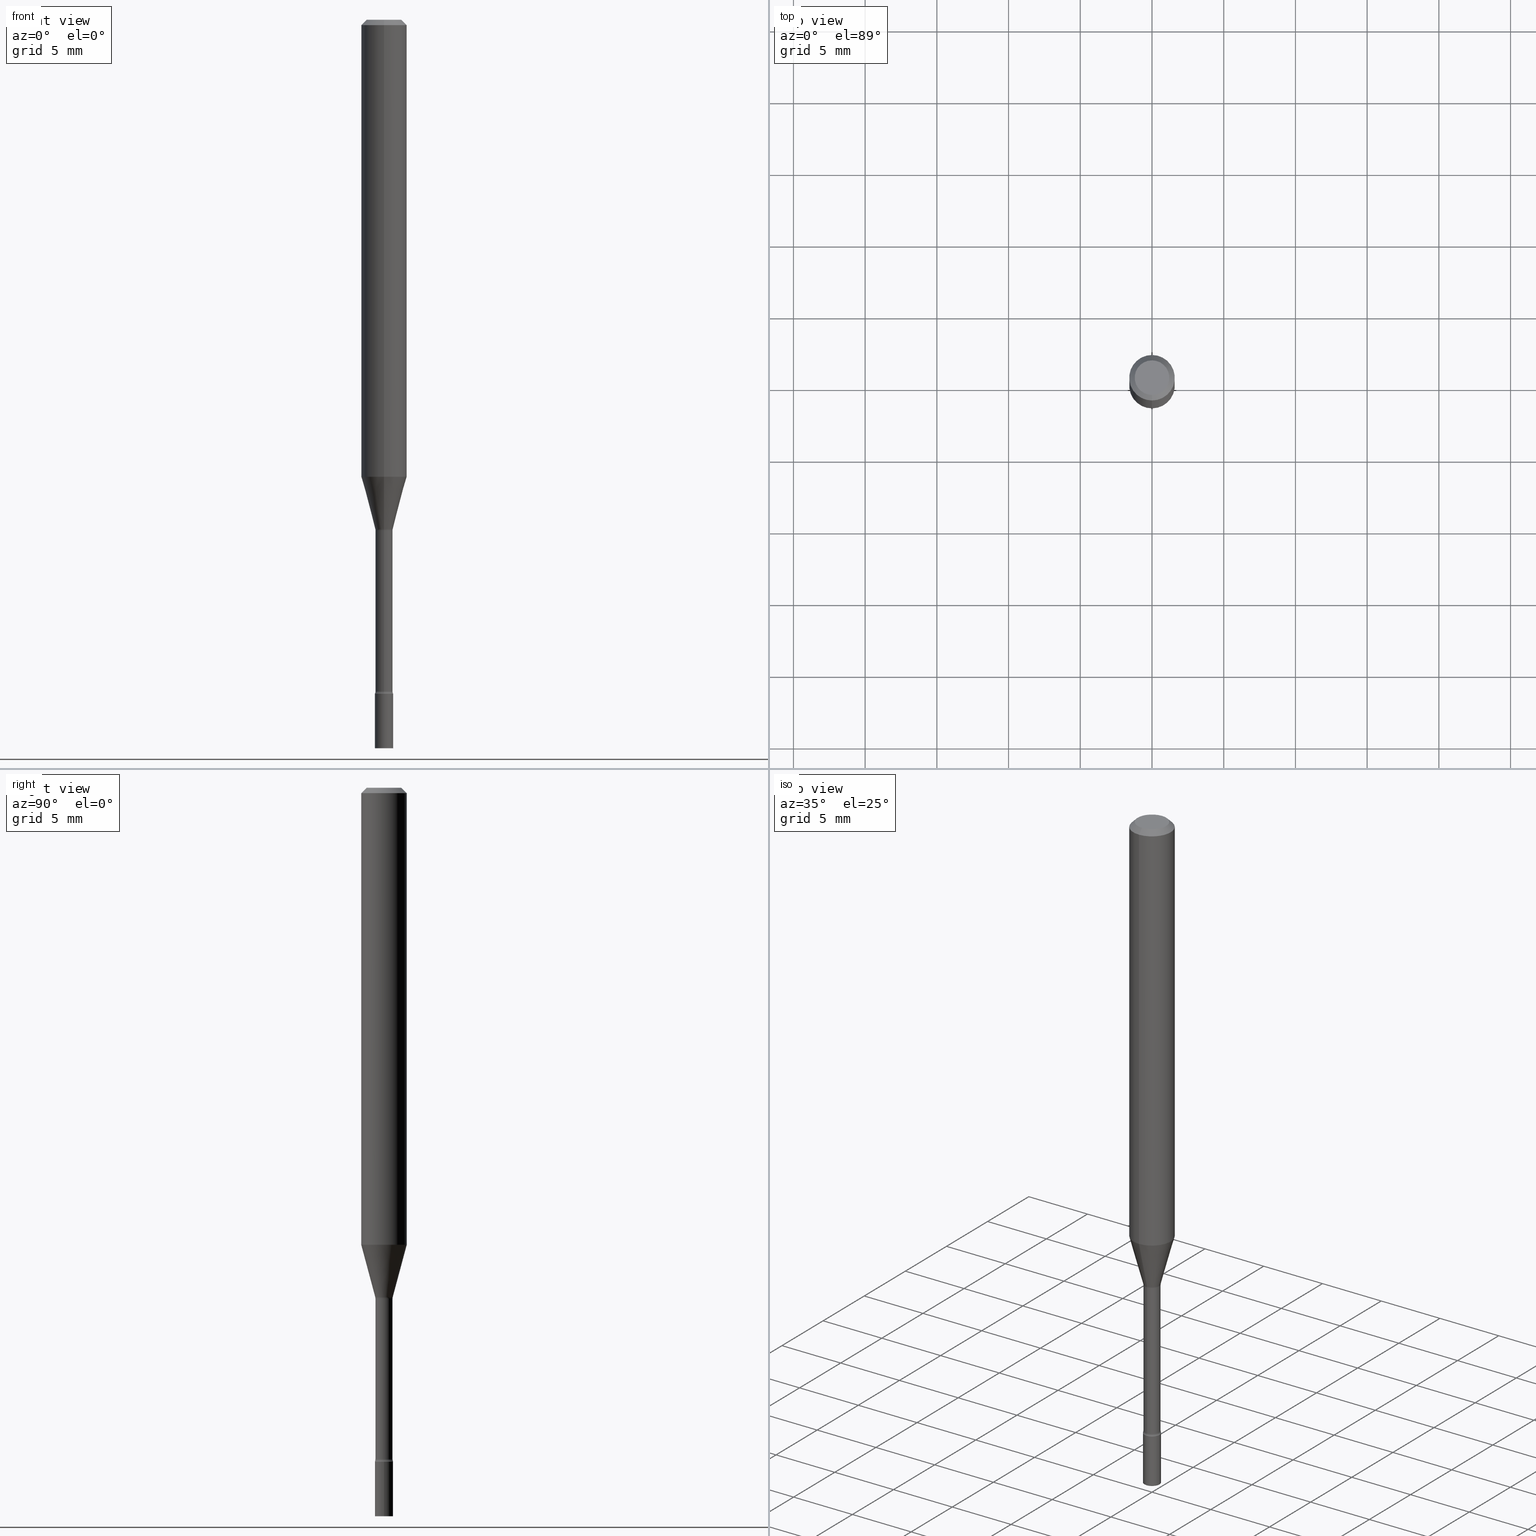
[diagram: canonical four-view strip — front | top / right | iso, engineering-drawing reading convention]
A machine part, canonical four-view strip (front | top / right | iso — engineering-drawing reading convention). The complete STEP part file that produces these views, byte-faithful:
ISO-10303-21;
HEADER;
FILE_DESCRIPTION (( 'STEP AP203' ),
    '1' );
FILE_NAME ('03437.STEP',
    '2024-03-08T21:22:01',
    ( '' ),
    ( '' ),
    'SwSTEP 2.0',
    'SolidWorks 2023',
    '' );
FILE_SCHEMA (( 'CONFIG_CONTROL_DESIGN' ));
ENDSEC;

DATA;
#1 = CARTESIAN_POINT ( 'NONE',  ( -4.364351673553912750E-16, -0.06250000000000005551, -0.01499999999999981209 ) ) ;
#2 = ORIENTED_EDGE ( 'NONE', *, *, #178, .T. ) ;
#3 = AXIS2_PLACEMENT_3D ( 'NONE', #188, #15, #303 ) ;
#4 = EDGE_LOOP ( 'NONE', ( #366, #451, #513, #84 ) ) ;
#5 = AXIS2_PLACEMENT_3D ( 'NONE', #498, #247, #462 ) ;
#6 = CONICAL_SURFACE ( 'NONE', #469, 0.06250000000000000000, 0.7853981633974483900 ) ;
#7 = FACE_OUTER_BOUND ( 'NONE', #139, .T. ) ;
#8 = ORIENTED_EDGE ( 'NONE', *, *, #16, .F. ) ;
#9 = DIRECTION ( 'NONE',  ( -2.445468806185136597E-29, 3.491481338843145583E-15, 1.000000000000000000 ) ) ;
#10 = DIRECTION ( 'NONE',  ( -2.445460790589413397E-29, 3.491492817632440030E-15, 1.000000000000000000 ) ) ;
#11 = DIRECTION ( 'NONE',  ( -2.445460790589413958E-29, 3.491492817632439636E-15, 1.000000000000000000 ) ) ;
#12 = EDGE_LOOP ( 'NONE', ( #341, #320, #77, #475 ) ) ;
#13 = EDGE_CURVE ( 'NONE', #439, #364, #354, .T. ) ;
#14 = DIRECTION ( 'NONE',  ( 1.000000000000000000, -6.982962677686254878E-15, 0.000000000000000000 ) ) ;
#15 = DIRECTION ( 'NONE',  ( -2.445460790589413958E-29, 3.491492817632439636E-15, 1.000000000000000000 ) ) ;
#16 = EDGE_CURVE ( 'NONE', #211, #364, #414, .T. ) ;
#17 = DIRECTION ( 'NONE',  ( -2.445460790589413958E-29, 3.491492817632439636E-15, 1.000000000000000000 ) ) ;
#18 = DATE_AND_TIME ( #355, #42 ) ;
#19 = CARTESIAN_POINT ( 'NONE',  ( 2.735589532676839768E-16, 0.03849999999999361572, -1.843461651584689109 ) ) ;
#20 = VECTOR ( 'NONE', #201, 39.37007874015748143 ) ;
#21 = CC_DESIGN_PERSON_AND_ORGANIZATION_ASSIGNMENT ( #236, #385, ( #156 ) ) ;
#22 = DATE_AND_TIME ( #311, #214 ) ;
#23 = CARTESIAN_POINT ( 'NONE',  ( 1.706092163947572763E-16, 0.02401111260565909691, -1.398092501787273179 ) ) ;
#24 = PRODUCT_DEFINITION_FORMATION_WITH_SPECIFIED_SOURCE ( 'ANY', '', #172, .NOT_KNOWN. ) ;
#25 = APPROVAL_ROLE ( '' ) ;
#26 = DIRECTION ( 'NONE',  ( 2.438088387897960049E-29, -3.491481338843145188E-15, -1.000000000000000000 ) ) ;
#27 = APPLICATION_PROTOCOL_DEFINITION ( 'international standard', 'config_control_design', 1994, #461 ) ;
#28 = DIRECTION ( 'NONE',  ( -2.445460790589413958E-29, 3.491492817632439636E-15, 1.000000000000000000 ) ) ;
#29 = TOROIDAL_SURFACE ( 'NONE', #503, 0.03850000000000005501, 0.01499999999999998036 ) ;
#30 = CARTESIAN_POINT ( 'NONE',  ( 3.428485609800787057E-29, -4.894968807958481776E-15, -1.401974787463811101 ) ) ;
#31 = AXIS2_PLACEMENT_3D ( 'NONE', #491, #55, #406 ) ;
#32 = EDGE_CURVE ( 'NONE', #122, #233, #482, .T. ) ;
#33 = ORIENTED_EDGE ( 'NONE', *, *, #118, .F. ) ;
#34 = CARTESIAN_POINT ( 'NONE',  ( -3.773273898774340269E-16, -0.04749999999999999362, 1.369325431521633397E-16 ) ) ;
#35 = ORIENTED_EDGE ( 'NONE', *, *, #467, .T. ) ;
#36 = ADVANCED_FACE ( 'NONE', ( #53 ), #362, .T. ) ;
#37 = DIRECTION ( 'NONE',  ( -6.982962677686266711E-15, -1.000000000000000000, 0.000000000000000000 ) ) ;
#38 = ORIENTED_EDGE ( 'NONE', *, *, #135, .F. ) ;
#39 = CC_DESIGN_PERSON_AND_ORGANIZATION_ASSIGNMENT ( #105, #277, ( #24 ) ) ;
#40 = CARTESIAN_POINT ( 'NONE',  ( 0.000000000000000000, 0.000000000000000000, 0.000000000000000000 ) ) ;
#41 = EDGE_LOOP ( 'NONE', ( #90, #327, #35, #373 ) ) ;
#42 = LOCAL_TIME ( 16, 22, 1.000000000000000000, #506 ) ;
#43 = CARTESIAN_POINT ( 'NONE',  ( 3.067708334007688547E-29, -4.379903229688440417E-15, -1.254450018504814413 ) ) ;
#44 =( NAMED_UNIT ( * ) SI_UNIT ( $, .STERADIAN. ) SOLID_ANGLE_UNIT ( ) );
#45 = VERTEX_POINT ( 'NONE', #50 ) ;
#46 = TOROIDAL_SURFACE ( 'NONE', #115, 0.03850000000000000644, 0.01500000000000002720 ) ;
#47 = AXIS2_PLACEMENT_3D ( 'NONE', #148, #235, #313 ) ;
#48 = DIRECTION ( 'NONE',  ( -6.982962677686265133E-15, -1.000000000000000000, 0.000000000000000000 ) ) ;
#49 = VECTOR ( 'NONE', #363, 39.37007874015748143 ) ;
#50 = CARTESIAN_POINT ( 'NONE',  ( -1.640996229255930104E-16, -0.02350000000000489891, -1.401974787463811101 ) ) ;
#51 = AXIS2_PLACEMENT_3D ( 'NONE', #221, #458, #335 ) ;
#52 = DIRECTION ( 'NONE',  ( -2.445460790589413958E-29, 3.491492817632439636E-15, 1.000000000000000000 ) ) ;
#53 = FACE_OUTER_BOUND ( 'NONE', #41, .T. ) ;
#54 = ADVANCED_FACE ( 'NONE', ( #56 ), #306, .F. ) ;
#55 = DIRECTION ( 'NONE',  ( -1.000000000000000000, 6.982962677686265922E-15, -4.883557194083112340E-29 ) ) ;
#56 = FACE_OUTER_BOUND ( 'NONE', #295, .T. ) ;
#57 = LENGTH_MEASURE_WITH_UNIT ( LENGTH_MEASURE( 0.02539999999999999897 ), #138 );
#58 = ADVANCED_FACE ( 'NONE', ( #383 ), #435, .F. ) ;
#59 = ORIENTED_EDGE ( 'NONE', *, *, #497, .T. ) ;
#60 = AXIS2_PLACEMENT_3D ( 'NONE', #227, #412, #264 ) ;
#61 = VERTEX_POINT ( 'NONE', #177 ) ;
#62 = PERSON_AND_ORGANIZATION ( #244, #382 ) ;
#63 = CARTESIAN_POINT ( 'NONE',  ( 0.000000000000000000, 0.000000000000000000, 0.000000000000000000 ) ) ;
#64 = VECTOR ( 'NONE', #284, 39.37007874015748143 ) ;
#65 = APPLICATION_PROTOCOL_DEFINITION ( 'international standard', 'config_control_design', 1994, #367 ) ;
#66 = CC_DESIGN_SECURITY_CLASSIFICATION ( #156, ( #24 ) ) ;
#67 = CARTESIAN_POINT ( 'NONE',  ( 3.668191185884128101E-31, -5.237239226448670621E-17, -0.01500000000000003067 ) ) ;
#68 = DATE_AND_TIME ( #234, #193 ) ;
#69 = DIRECTION ( 'NONE',  ( -2.445460790589413958E-29, 3.491492817632440030E-15, 1.000000000000000000 ) ) ;
#70 = CARTESIAN_POINT ( 'NONE',  ( 3.418980394737836863E-29, -4.881429928376032930E-15, -1.398092501787273179 ) ) ;
#71 = EDGE_CURVE ( 'NONE', #218, #265, #345, .T. ) ;
#72 = CARTESIAN_POINT ( 'NONE',  ( -1.640996229256275231E-16, -0.02350000000000003475, 8.205008121436246387E-17 ) ) ;
#73 = VECTOR ( 'NONE', #140, 39.37007874015748143 ) ;
#74 = VERTEX_POINT ( 'NONE', #470 ) ;
#75 = CARTESIAN_POINT ( 'NONE',  ( 4.524117291442502256E-29, -6.459240476859818795E-15, -1.849999999999999867 ) ) ;
#76 = ADVANCED_BREP_SHAPE_REPRESENTATION ( '03437', ( #155, #151, #304 ), #331 ) ;
#77 = ORIENTED_EDGE ( 'NONE', *, *, #471, .T. ) ;
#78 = ADVANCED_FACE ( 'NONE', ( #314 ), #46, .F. ) ;
#79 = DIRECTION ( 'NONE',  ( -6.982962677686265133E-15, -1.000000000000000000, 0.000000000000000000 ) ) ;
#80 = ORIENTED_EDGE ( 'NONE', *, *, #256, .T. ) ;
#81 = CIRCLE ( 'NONE', #330, 0.06250000000000000000 ) ;
#82 = CARTESIAN_POINT ( 'NONE',  ( 4.440892098500625669E-16, 0.06250000000000000000, -2.182183011020274772E-16 ) ) ;
#83 = CIRCLE ( 'NONE', #5, 0.01499999999999998557 ) ;
#84 = ORIENTED_EDGE ( 'NONE', *, *, #315, .F. ) ;
#85 = CARTESIAN_POINT ( 'NONE',  ( 3.418980394737836863E-29, -4.881429928376032930E-15, -1.398092501787273179 ) ) ;
#86 = EDGE_CURVE ( 'NONE', #61, #74, #466, .T. ) ;
#87 = ORIENTED_EDGE ( 'NONE', *, *, #135, .T. ) ;
#88 = CARTESIAN_POINT ( 'NONE',  ( 4.508127964348889848E-29, -6.436411955380906656E-15, -1.843461651584689109 ) ) ;
#89 = AXIS2_PLACEMENT_3D ( 'NONE', #75, #517, #212 ) ;
#90 = ORIENTED_EDGE ( 'NONE', *, *, #256, .F. ) ;
#91 = ADVANCED_FACE ( 'NONE', ( #152 ), #507, .T. ) ;
#92 = AXIS2_PLACEMENT_3D ( 'NONE', #374, #408, #376 ) ;
#93 = APPROVAL_PERSON_ORGANIZATION ( #501, #415, #392 ) ;
#94 = CARTESIAN_POINT ( 'NONE',  ( 0.02500000000000000139, -6.633814543801975463E-15, -1.849999999999999867 ) ) ;
#95 = ORIENTED_EDGE ( 'NONE', *, *, #111, .T. ) ;
#96 = CC_DESIGN_PERSON_AND_ORGANIZATION_ASSIGNMENT ( #62, #279, ( #24 ) ) ;
#97 = CARTESIAN_POINT ( 'NONE',  ( 4.440892098500934804E-16, 0.06249999999999995143, -0.01500000000000024751 ) ) ;
#98 = ORIENTED_EDGE ( 'NONE', *, *, #293, .T. ) ;
#99 = COORDINATED_UNIVERSAL_TIME_OFFSET ( 5, 0, .BEHIND. ) ;
#100 = ORIENTED_EDGE ( 'NONE', *, *, #169, .F. ) ;
#101 = PERSON_AND_ORGANIZATION_ROLE ( 'design_owner' ) ;
#102 = LINE ( 'NONE', #274, #20 ) ;
#103 = CARTESIAN_POINT ( 'NONE',  ( 0.000000000000000000, 0.000000000000000000, 0.000000000000000000 ) ) ;
#104 = CYLINDRICAL_SURFACE ( 'NONE', #47, 0.06250000000000000000 ) ;
#105 = PERSON_AND_ORGANIZATION ( #244, #382 ) ;
#106 = PLANE ( 'NONE',  #192 ) ;
#107 = ADVANCED_FACE ( 'NONE', ( #309 ), #104, .T. ) ;
#108 = DIRECTION ( 'NONE',  ( 1.000000000000000000, 0.000000000000000000, 0.000000000000000000 ) ) ;
#109 = CIRCLE ( 'NONE', #137, 0.02500000000000000139 ) ;
#110 = DIRECTION ( 'NONE',  ( -2.438088387897960049E-29, 3.491481338843145188E-15, 1.000000000000000000 ) ) ;
#111 = EDGE_CURVE ( 'NONE', #515, #122, #112, .T. ) ;
#112 = LINE ( 'NONE', #23, #64 ) ;
#113 = LINE ( 'NONE', #483, #165 ) ;
#114 = ADVANCED_FACE ( 'NONE', ( #433 ), #106, .T. ) ;
#115 = AXIS2_PLACEMENT_3D ( 'NONE', #196, #191, #509 ) ;
#116 = ORIENTED_EDGE ( 'NONE', *, *, #195, .F. ) ;
#117 = CARTESIAN_POINT ( 'NONE',  ( 0.02500000000000000139, -1.745740669421566924E-16, 1.219044193948984123E-30 ) ) ;
#118 = EDGE_CURVE ( 'NONE', #233, #333, #280, .T. ) ;
#119 = AXIS2_PLACEMENT_3D ( 'NONE', #328, #472, #474 ) ;
#120 = ORIENTED_EDGE ( 'NONE', *, *, #118, .T. ) ;
#121 = CARTESIAN_POINT ( 'NONE',  ( 3.840629472727447874E-16, 0.04749999999999999362, -1.947592745229184119E-16 ) ) ;
#122 = VERTEX_POINT ( 'NONE', #283 ) ;
#123 = DIRECTION ( 'NONE',  ( -6.982962677686267499E-15, -1.000000000000000000, 3.491492817632440030E-15 ) ) ;
#124 = ORIENTED_EDGE ( 'NONE', *, *, #195, .T. ) ;
#125 = VECTOR ( 'NONE', #381, 39.37007874015748143 ) ;
#126 = DIRECTION ( 'NONE',  ( -6.982962677686265922E-15, -1.000000000000000000, 4.370956789862821150E-15 ) ) ;
#127 = AXIS2_PLACEMENT_3D ( 'NONE', #489, #52, #48 ) ;
#128 = CARTESIAN_POINT ( 'NONE',  ( 3.428474372137676745E-29, -4.894984900931663288E-15, -1.401974787463811101 ) ) ;
#129 = LINE ( 'NONE', #452, #73 ) ;
#130 = ORIENTED_EDGE ( 'NONE', *, *, #353, .T. ) ;
#131 = ADVANCED_FACE ( 'NONE', ( #246 ), #29, .F. ) ;
#132 = FACE_OUTER_BOUND ( 'NONE', #290, .T. ) ;
#133 = CIRCLE ( 'NONE', #301, 0.04749999999999999362 ) ;
#134 = EDGE_LOOP ( 'NONE', ( #492, #87, #124, #260 ) ) ;
#135 = EDGE_CURVE ( 'NONE', #515, #419, #240, .T. ) ;
#136 = UNCERTAINTY_MEASURE_WITH_UNIT (LENGTH_MEASURE( 1.000000000000000082E-05 ), #380, 'distance_accuracy_value', 'NONE');
#137 = AXIS2_PLACEMENT_3D ( 'NONE', #181, #371, #14 ) ;
#138 =( LENGTH_UNIT ( ) NAMED_UNIT ( * ) SI_UNIT ( $, .METRE. ) );
#139 = EDGE_LOOP ( 'NONE', ( #403, #407, #480, #185 ) ) ;
#140 = DIRECTION ( 'NONE',  ( -4.851104656540964275E-15, -0.7071067811865500152, -0.7071067811865450192 ) ) ;
#141 = EDGE_LOOP ( 'NONE', ( #496, #494, #166, #378 ) ) ;
#142 = AXIS2_PLACEMENT_3D ( 'NONE', #375, #10, #420 ) ;
#143 = CARTESIAN_POINT ( 'NONE',  ( 1.745740669422055771E-16, 0.02499999999999301739, -2.000000000000000000 ) ) ;
#144 = CONICAL_SURFACE ( 'NONE', #372, 0.02401111260566398189, 0.2617993877991502960 ) ;
#145 = SHAPE_DEFINITION_REPRESENTATION ( #476, #76 ) ;
#146 = DIRECTION ( 'NONE',  ( -6.982962677686266711E-15, -1.000000000000000000, 3.491492817632440030E-15 ) ) ;
#147 = PERSON_AND_ORGANIZATION ( #244, #382 ) ;
#148 = CARTESIAN_POINT ( 'NONE',  ( 0.000000000000000000, 0.000000000000000000, 0.000000000000000000 ) ) ;
#149 = EDGE_CURVE ( 'NONE', #174, #211, #266, .T. ) ;
#150 = CALENDAR_DATE ( 2024, 8, 3 ) ;
#151 = MANIFOLD_SOLID_BREP ( 'Body-Move/Copy2[2]', #379 ) ;
#152 = FACE_OUTER_BOUND ( 'NONE', #338, .T. ) ;
#153 = EDGE_CURVE ( 'NONE', #473, #333, #81, .T. ) ;
#154 = AXIS2_PLACEMENT_3D ( 'NONE', #204, #17, #189 ) ;
#155 = MANIFOLD_SOLID_BREP ( 'Body-Move/Copy2[1]', #400 ) ;
#156 = SECURITY_CLASSIFICATION ( '', '', #349 ) ;
#157 = DIRECTION ( 'NONE',  ( 1.000000000000000000, -6.982962677686254878E-15, 0.000000000000000000 ) ) ;
#158 = AXIS2_PLACEMENT_3D ( 'NONE', #159, #252, #291 ) ;
#159 = CARTESIAN_POINT ( 'NONE',  ( 3.316907271900976096E-16, 0.04749999999999999362, -1.803025916802296438E-16 ) ) ;
#160 = ORIENTED_EDGE ( 'NONE', *, *, #71, .T. ) ;
#161 = DIRECTION ( 'NONE',  ( 1.000000000000000000, -7.105427357601001070E-15, 4.926315649116708181E-29 ) ) ;
#162 = ORIENTED_EDGE ( 'NONE', *, *, #444, .F. ) ;
#163 = VECTOR ( 'NONE', #365, 39.37007874015748143 ) ;
#164 = FACE_OUTER_BOUND ( 'NONE', #329, .T. ) ;
#165 = VECTOR ( 'NONE', #294, 39.37007874015748143 ) ;
#166 = ORIENTED_EDGE ( 'NONE', *, *, #359, .T. ) ;
#167 = CIRCLE ( 'NONE', #198, 0.02350000000000000352 ) ;
#168 = DIRECTION ( 'NONE',  ( -2.445460790589413958E-29, 3.491492817632439636E-15, 1.000000000000000000 ) ) ;
#169 = EDGE_CURVE ( 'NONE', #219, #459, #83, .T. ) ;
#170 = AXIS2_PLACEMENT_3D ( 'NONE', #318, #257, #442 ) ;
#171 = ORIENTED_EDGE ( 'NONE', *, *, #224, .F. ) ;
#172 = PRODUCT ( '03437', '03437', '', ( #282 ) ) ;
#173 = DIRECTION ( 'NONE',  ( -2.445468806185136877E-29, 3.491481338843145188E-15, 1.000000000000000000 ) ) ;
#174 = VERTEX_POINT ( 'NONE', #242 ) ;
#175 = AXIS2_PLACEMENT_3D ( 'NONE', #453, #460, #417 ) ;
#176 = CARTESIAN_POINT ( 'NONE',  ( -1.676687031750395996E-16, -0.02401111260566886341, -1.398092501787273179 ) ) ;
#177 = CARTESIAN_POINT ( 'NONE',  ( 1.723066134218696351E-16, 0.02349999999999363709, -1.843461651584689109 ) ) ;
#178 = EDGE_CURVE ( 'NONE', #459, #324, #396, .T. ) ;
#179 = DIRECTION ( 'NONE',  ( 2.445460790589413958E-29, -3.491492817632439636E-15, -1.000000000000000000 ) ) ;
#180 = ORIENTED_EDGE ( 'NONE', *, *, #13, .F. ) ;
#181 = CARTESIAN_POINT ( 'NONE',  ( 4.890937612370273194E-29, -6.982962677686291165E-15, -2.000000000000000000 ) ) ;
#182 = ADVANCED_FACE ( 'NONE', ( #278 ), #344, .T. ) ;
#183 = EDGE_LOOP ( 'NONE', ( #398, #250, #300, #2 ) ) ;
#184 = DIRECTION ( 'NONE',  ( -6.982962677686265133E-15, -1.000000000000000000, 0.000000000000000000 ) ) ;
#185 = ORIENTED_EDGE ( 'NONE', *, *, #239, .F. ) ;
#186 = AXIS2_PLACEMENT_3D ( 'NONE', #40, #249, #123 ) ;
#187 =( NAMED_UNIT ( * ) PLANE_ANGLE_UNIT ( ) SI_UNIT ( $, .RADIAN. ) );
#188 = CARTESIAN_POINT ( 'NONE',  ( 3.067708334007688547E-29, -4.379903229688440417E-15, -1.254450018504814413 ) ) ;
#189 = DIRECTION ( 'NONE',  ( -6.982962677686265133E-15, -1.000000000000000000, 0.000000000000000000 ) ) ;
#190 = APPROVAL_ROLE ( '' ) ;
#191 = DIRECTION ( 'NONE',  ( -2.445460790589413958E-29, 3.491492817632439636E-15, 1.000000000000000000 ) ) ;
#192 = AXIS2_PLACEMENT_3D ( 'NONE', #391, #110, #386 ) ;
#193 = LOCAL_TIME ( 16, 22, 1.000000000000000000, #99 ) ;
#194 = APPROVAL_DATE_TIME ( #68, #297 ) ;
#195 = EDGE_CURVE ( 'NONE', #419, #233, #102, .T. ) ;
#196 = CARTESIAN_POINT ( 'NONE',  ( 3.428485609800787057E-29, -4.894968807958481776E-15, -1.401974787463811101 ) ) ;
#197 = AXIS2_PLACEMENT_3D ( 'NONE', #70, #504, #393 ) ;
#198 = AXIS2_PLACEMENT_3D ( 'NONE', #208, #325, #368 ) ;
#199 = CIRCLE ( 'NONE', #170, 0.02350000000000007291 ) ;
#200 = DATE_TIME_ROLE ( 'creation_date' ) ;
#201 = DIRECTION ( 'NONE',  ( -1.807323732225330928E-15, -0.2588190451025182970, 0.9659258262890689783 ) ) ;
#202 = CC_DESIGN_DATE_AND_TIME_ASSIGNMENT ( #390, #200, ( #384 ) ) ;
#203 = APPROVAL_DATE_TIME ( #312, #415 ) ;
#204 = CARTESIAN_POINT ( 'NONE',  ( 4.524102462590415430E-29, -6.459261712620014194E-15, -1.849999999999999867 ) ) ;
#205 = VECTOR ( 'NONE', #173, 39.37007874015748143 ) ;
#206 = DIRECTION ( 'NONE',  ( -2.445460790589413958E-29, 3.491492817632439636E-15, 1.000000000000000000 ) ) ;
#207 = CC_DESIGN_PERSON_AND_ORGANIZATION_ASSIGNMENT ( #387, #241, ( #384 ) ) ;
#208 = CARTESIAN_POINT ( 'NONE',  ( 3.428474372137676745E-29, -4.894984900931663288E-15, -1.401974787463811101 ) ) ;
#209 = EDGE_LOOP ( 'NONE', ( #332, #450 ) ) ;
#210 = DIRECTION ( 'NONE',  ( -2.445460790589413958E-29, 3.491492817632439636E-15, 1.000000000000000000 ) ) ;
#211 = VERTEX_POINT ( 'NONE', #423 ) ;
#212 = DIRECTION ( 'NONE',  ( 1.000000000000000000, -6.982962677686254878E-15, 0.000000000000000000 ) ) ;
#213 = EDGE_CURVE ( 'NONE', #61, #324, #319, .T. ) ;
#214 = LOCAL_TIME ( 16, 22, 1.000000000000000000, #432 ) ;
#215 = ORIENTED_EDGE ( 'NONE', *, *, #467, .F. ) ;
#216 = LINE ( 'NONE', #82, #49 ) ;
#217 = EDGE_CURVE ( 'NONE', #122, #473, #216, .T. ) ;
#218 = VERTEX_POINT ( 'NONE', #121 ) ;
#219 = VERTEX_POINT ( 'NONE', #514 ) ;
#220 = AXIS2_PLACEMENT_3D ( 'NONE', #88, #262, #410 ) ;
#221 = CARTESIAN_POINT ( 'NONE',  ( 3.418980394737836863E-29, -4.881429928376032930E-15, -1.398092501787273179 ) ) ;
#222 = CARTESIAN_POINT ( 'NONE',  ( 7.070650210756417535E-46, -1.009508086240759037E-31, -2.891336568537753609E-17 ) ) ;
#223 = AXIS2_PLACEMENT_3D ( 'NONE', #30, #206, #358 ) ;
#224 = EDGE_CURVE ( 'NONE', #364, #439, #229, .T. ) ;
#225 = FACE_OUTER_BOUND ( 'NONE', #520, .T. ) ;
#226 = DIRECTION ( 'NONE',  ( 6.982962677686265922E-15, 1.000000000000000000, -3.483106191921935554E-15 ) ) ;
#227 = CARTESIAN_POINT ( 'NONE',  ( 0.000000000000000000, 0.000000000000000000, 0.000000000000000000 ) ) ;
#228 = CARTESIAN_POINT ( 'NONE',  ( -1.745740669421113083E-16, -0.02500000000000644762, -1.849999999999999867 ) ) ;
#229 = CIRCLE ( 'NONE', #89, 0.02500000000000000139 ) ;
#230 = VECTOR ( 'NONE', #348, 39.37007874015748143 ) ;
#231 = CARTESIAN_POINT ( 'NONE',  ( -0.02500000000000000139, 1.776356839400250563E-16, -1.229733772563726656E-30 ) ) ;
#232 = CC_DESIGN_APPROVAL ( #438, ( #24 ) ) ;
#233 = VERTEX_POINT ( 'NONE', #399 ) ;
#234 = CALENDAR_DATE ( 2024, 8, 3 ) ;
#235 = DIRECTION ( 'NONE',  ( -2.445460790589413958E-29, 3.491492817632439636E-15, 1.000000000000000000 ) ) ;
#236 = PERSON_AND_ORGANIZATION ( #244, #382 ) ;
#237 = CARTESIAN_POINT ( 'NONE',  ( -4.364351673553916201E-16, -0.06250000000000000000, 2.182183011020274772E-16 ) ) ;
#238 = CIRCLE ( 'NONE', #447, 0.02401111260566398189 ) ;
#239 = EDGE_CURVE ( 'NONE', #219, #45, #402, .T. ) ;
#240 = CIRCLE ( 'NONE', #197, 0.02401111260566398189 ) ;
#241 = PERSON_AND_ORGANIZATION_ROLE ( 'creator' ) ;
#242 = CARTESIAN_POINT ( 'NONE',  ( 0.02500000000000000139, -7.157536744628447044E-15, -2.000000000000000000 ) ) ;
#243 = AXIS2_PLACEMENT_3D ( 'NONE', #43, #168, #126 ) ;
#244 = PERSON ( 'UNSPECIFIED', 'UNSPECIFIED', 'UNSPECIFIED', ('UNSPECIFIED'), ('UNSPECIFIED'), ('UNSPECIFIED') ) ;
#245 = PERSON_AND_ORGANIZATION ( #244, #382 ) ;
#246 = FACE_OUTER_BOUND ( 'NONE', #484, .T. ) ;
#247 = DIRECTION ( 'NONE',  ( -1.000000000000000000, 6.982962677686265922E-15, -4.883557194083112340E-29 ) ) ;
#248 = TOROIDAL_SURFACE ( 'NONE', #223, 0.03850000000000000644, 0.01500000000000002720 ) ;
#249 = DIRECTION ( 'NONE',  ( -2.445460790589413958E-29, 3.491492817632439636E-15, 1.000000000000000000 ) ) ;
#250 = ORIENTED_EDGE ( 'NONE', *, *, #339, .F. ) ;
#251 = DIMENSIONAL_EXPONENTS ( 1.000000000000000000, 0.000000000000000000, 0.000000000000000000, 0.000000000000000000, 0.000000000000000000, 0.000000000000000000, 0.000000000000000000 ) ;
#252 = DIRECTION ( 'NONE',  ( 2.445460790589413397E-29, -3.491492817632440030E-15, -1.000000000000000000 ) ) ;
#253 = ORIENTED_EDGE ( 'NONE', *, *, #213, .T. ) ;
#254 = LINE ( 'NONE', #117, #205 ) ;
#255 = ORIENTED_EDGE ( 'NONE', *, *, #471, .F. ) ;
#256 = EDGE_CURVE ( 'NONE', #265, #218, #133, .T. ) ;
#257 = DIRECTION ( 'NONE',  ( -2.445460790589413958E-29, 3.491492817632439636E-15, 1.000000000000000000 ) ) ;
#258 = APPROVAL_PERSON_ORGANIZATION ( #510, #297, #25 ) ;
#259 = DIRECTION ( 'NONE',  ( -2.445460790589413958E-29, 3.491492817632439636E-15, 1.000000000000000000 ) ) ;
#260 = ORIENTED_EDGE ( 'NONE', *, *, #32, .F. ) ;
#261 = CYLINDRICAL_SURFACE ( 'NONE', #92, 0.02350000000000003475 ) ;
#262 = DIRECTION ( 'NONE',  ( -2.445460790589413958E-29, 3.491492817632439636E-15, 1.000000000000000000 ) ) ;
#263 = ORIENTED_EDGE ( 'NONE', *, *, #13, .T. ) ;
#264 = DIRECTION ( 'NONE',  ( 1.000000000000000000, -6.982962677686267499E-15, 4.876176775795936353E-29 ) ) ;
#265 = VERTEX_POINT ( 'NONE', #34 ) ;
#266 = CIRCLE ( 'NONE', #326, 0.02500000000000000139 ) ;
#267 = EDGE_CURVE ( 'NONE', #61, #219, #427, .T. ) ;
#268 = CYLINDRICAL_SURFACE ( 'NONE', #60, 0.02500000000000000139 ) ;
#269 = ORIENTED_EDGE ( 'NONE', *, *, #444, .T. ) ;
#270 = APPROVAL_DATE_TIME ( #22, #438 ) ;
#271 = DIRECTION ( 'NONE',  ( 2.445460790589413958E-29, -3.491492817632439636E-15, -1.000000000000000000 ) ) ;
#272 = CC_DESIGN_APPROVAL ( #415, ( #156 ) ) ;
#273 = COORDINATED_UNIVERSAL_TIME_OFFSET ( 5, 0, .BEHIND. ) ;
#274 = CARTESIAN_POINT ( 'NONE',  ( -1.676687031750395996E-16, -0.02401111260566886341, -1.398092501787273179 ) ) ;
#275 = ADVANCED_FACE ( 'NONE', ( #164 ), #478, .F. ) ;
#276 = ORIENTED_EDGE ( 'NONE', *, *, #32, .T. ) ;
#277 = PERSON_AND_ORGANIZATION_ROLE ( 'creator' ) ;
#278 = FACE_OUTER_BOUND ( 'NONE', #209, .T. ) ;
#279 = PERSON_AND_ORGANIZATION_ROLE ( 'design_supplier' ) ;
#280 = LINE ( 'NONE', #237, #230 ) ;
#281 = AXIS2_PLACEMENT_3D ( 'NONE', #128, #369, #302 ) ;
#282 = MECHANICAL_CONTEXT ( 'NONE', #461, 'mechanical' ) ;
#283 = CARTESIAN_POINT ( 'NONE',  ( 4.440892098500930859E-16, 0.06249999999999559380, -1.254450018504814635 ) ) ;
#284 = DIRECTION ( 'NONE',  ( 1.839019923739601104E-15, 0.2588190451025250693, 0.9659258262890670910 ) ) ;
#285 = AXIS2_PLACEMENT_3D ( 'NONE', #222, #424, #146 ) ;
#286 = FACE_OUTER_BOUND ( 'NONE', #12, .T. ) ;
#287 = AXIS2_PLACEMENT_3D ( 'NONE', #19, #161, #316 ) ;
#288 = ORIENTED_EDGE ( 'NONE', *, *, #217, .T. ) ;
#289 = FACE_OUTER_BOUND ( 'NONE', #134, .T. ) ;
#290 = EDGE_LOOP ( 'NONE', ( #59, #95, #457, #116 ) ) ;
#291 = DIRECTION ( 'NONE',  ( 6.982962677686265922E-15, 1.000000000000000000, -3.491492817632440030E-15 ) ) ;
#292 = ORIENTED_EDGE ( 'NONE', *, *, #310, .T. ) ;
#293 = EDGE_CURVE ( 'NONE', #515, #74, #429, .T. ) ;
#294 = DIRECTION ( 'NONE',  ( 4.937700262164548042E-15, 0.7071067811865451302, -0.7071067811865499042 ) ) ;
#295 = EDGE_LOOP ( 'NONE', ( #441, #162 ) ) ;
#296 = ORIENTED_EDGE ( 'NONE', *, *, #149, .T. ) ;
#297 = APPROVAL ( #307, 'UNSPECIFIED' ) ;
#298 = ORIENTED_EDGE ( 'NONE', *, *, #425, .T. ) ;
#299 = DIRECTION ( 'NONE',  ( 6.982962677686265922E-15, 1.000000000000000000, -3.483106191921935554E-15 ) ) ;
#300 = ORIENTED_EDGE ( 'NONE', *, *, #169, .T. ) ;
#301 = AXIS2_PLACEMENT_3D ( 'NONE', #322, #519, #395 ) ;
#302 = DIRECTION ( 'NONE',  ( -6.982962677686265922E-15, -1.000000000000000000, 0.000000000000000000 ) ) ;
#303 = DIRECTION ( 'NONE',  ( -6.982962677686265922E-15, -1.000000000000000000, 4.370956789862821150E-15 ) ) ;
#304 = AXIS2_PLACEMENT_3D ( 'NONE', #103, #426, #108 ) ;
#305 = EDGE_LOOP ( 'NONE', ( #8, #298, #130, #171 ) ) ;
#306 = PLANE ( 'NONE',  #142 ) ;
#307 = APPROVAL_STATUS ( 'not_yet_approved' ) ;
#308 = DIRECTION ( 'NONE',  ( -1.000000000000000000, 6.982962677686265922E-15, -4.876176775795935793E-29 ) ) ;
#309 = FACE_OUTER_BOUND ( 'NONE', #500, .T. ) ;
#310 = EDGE_CURVE ( 'NONE', #233, #122, #487, .T. ) ;
#311 = CALENDAR_DATE ( 2024, 8, 3 ) ;
#312 = DATE_AND_TIME ( #150, #518 ) ;
#313 = DIRECTION ( 'NONE',  ( -6.982962677686265922E-15, -1.000000000000000000, 3.491492817632439636E-15 ) ) ;
#314 = FACE_OUTER_BOUND ( 'NONE', #405, .T. ) ;
#315 = EDGE_CURVE ( 'NONE', #74, #45, #167, .T. ) ;
#316 = DIRECTION ( 'NONE',  ( 7.105427357600997914E-15, 1.000000000000000000, 0.000000000000000000 ) ) ;
#317 = ORIENTED_EDGE ( 'NONE', *, *, #153, .F. ) ;
#318 = CARTESIAN_POINT ( 'NONE',  ( 4.508113187905560088E-29, -6.436433116088776925E-15, -1.843461651584689109 ) ) ;
#319 = CIRCLE ( 'NONE', #287, 0.01499999999999998557 ) ;
#320 = ORIENTED_EDGE ( 'NONE', *, *, #497, .F. ) ;
#321 = APPROVAL_PERSON_ORGANIZATION ( #245, #438, #190 ) ;
#322 = CARTESIAN_POINT ( 'NONE',  ( 7.070650210756417535E-46, -1.009508086240759037E-31, -2.891336568537753609E-17 ) ) ;
#323 = PRODUCT_RELATED_PRODUCT_CATEGORY ( 'detail', '', ( #172 ) ) ;
#324 = VERTEX_POINT ( 'NONE', #404 ) ;
#325 = DIRECTION ( 'NONE',  ( -2.445460790589413958E-29, 3.491492817632439636E-15, 1.000000000000000000 ) ) ;
#326 = AXIS2_PLACEMENT_3D ( 'NONE', #464, #511, #157 ) ;
#327 = ORIENTED_EDGE ( 'NONE', *, *, #411, .T. ) ;
#328 = CARTESIAN_POINT ( 'NONE',  ( 2.735589532676728342E-16, 0.03849999999999511452, -1.401974787463811101 ) ) ;
#329 = EDGE_LOOP ( 'NONE', ( #160, #80 ) ) ;
#330 = AXIS2_PLACEMENT_3D ( 'NONE', #67, #28, #350 ) ;
#331 =( GEOMETRIC_REPRESENTATION_CONTEXT ( 3 ) GLOBAL_UNCERTAINTY_ASSIGNED_CONTEXT ( ( #136 ) ) GLOBAL_UNIT_ASSIGNED_CONTEXT ( ( #380, #187, #44 ) ) REPRESENTATION_CONTEXT ( 'NONE', 'WORKASPACE' ) );
#332 = ORIENTED_EDGE ( 'NONE', *, *, #149, .F. ) ;
#333 = VERTEX_POINT ( 'NONE', #1 ) ;
#334 = DESIGN_CONTEXT ( 'detailed design', #367, 'design' ) ;
#335 = DIRECTION ( 'NONE',  ( -6.982962677686265133E-15, -1.000000000000000000, 0.000000000000000000 ) ) ;
#336 = ORIENTED_EDGE ( 'NONE', *, *, #267, .F. ) ;
#337 = CARTESIAN_POINT ( 'NONE',  ( 3.668191185884128101E-31, -5.237239226448670621E-17, -0.01500000000000003067 ) ) ;
#338 = EDGE_LOOP ( 'NONE', ( #292, #288, #215, #33 ) ) ;
#339 = EDGE_CURVE ( 'NONE', #219, #61, #199, .T. ) ;
#340 = FACE_OUTER_BOUND ( 'NONE', #141, .T. ) ;
#341 = ORIENTED_EDGE ( 'NONE', *, *, #293, .F. ) ;
#342 = ADVANCED_FACE ( 'NONE', ( #289 ), #144, .T. ) ;
#343 = CARTESIAN_POINT ( 'NONE',  ( 3.668191185884128101E-31, -5.237239226448670621E-17, -0.01500000000000003067 ) ) ;
#344 = PLANE ( 'NONE',  #499 ) ;
#345 = CIRCLE ( 'NONE', #285, 0.04749999999999999362 ) ;
#346 = CC_DESIGN_DATE_AND_TIME_ASSIGNMENT ( #18, #347, ( #156 ) ) ;
#347 = DATE_TIME_ROLE ( 'classification_date' ) ;
#348 = DIRECTION ( 'NONE',  ( -2.445460790589413958E-29, 3.491492817632440030E-15, 1.000000000000000000 ) ) ;
#349 = SECURITY_CLASSIFICATION_LEVEL ( 'unclassified' ) ;
#350 = DIRECTION ( 'NONE',  ( -6.982962677686265922E-15, -1.000000000000000000, 3.483106191921935554E-15 ) ) ;
#351 = APPROVAL_STATUS ( 'not_yet_approved' ) ;
#352 = DIRECTION ( 'NONE',  ( -2.445460790589413958E-29, 3.491492817632439636E-15, 1.000000000000000000 ) ) ;
#353 = EDGE_CURVE ( 'NONE', #174, #439, #254, .T. ) ;
#354 = CIRCLE ( 'NONE', #175, 0.02500000000000000139 ) ;
#355 = CALENDAR_DATE ( 2024, 8, 3 ) ;
#356 = CARTESIAN_POINT ( 'NONE',  ( 1.669775429036237659E-16, 0.02350000000000003475, -8.205008121436246387E-17 ) ) ;
#357 = ADVANCED_FACE ( 'NONE', ( #440 ), #479, .T. ) ;
#358 = DIRECTION ( 'NONE',  ( -6.982962677686265922E-15, -1.000000000000000000, 3.491492817632440030E-15 ) ) ;
#359 = EDGE_CURVE ( 'NONE', #218, #473, #113, .T. ) ;
#360 = CARTESIAN_POINT ( 'NONE',  ( 4.508113187905560088E-29, -6.436433116088776925E-15, -1.843461651584689109 ) ) ;
#361 = ORIENTED_EDGE ( 'NONE', *, *, #16, .T. ) ;
#362 = CONICAL_SURFACE ( 'NONE', #370, 0.06250000000000000000, 0.7853981633974483900 ) ;
#363 = DIRECTION ( 'NONE',  ( -2.445460790589413958E-29, 3.491492817632440030E-15, 1.000000000000000000 ) ) ;
#364 = VERTEX_POINT ( 'NONE', #445 ) ;
#365 = DIRECTION ( 'NONE',  ( -2.445460790589413958E-29, 3.491492817632440030E-15, 1.000000000000000000 ) ) ;
#366 = ORIENTED_EDGE ( 'NONE', *, *, #86, .F. ) ;
#367 = APPLICATION_CONTEXT ( 'configuration controlled 3d designs of mechanical parts and assemblies' ) ;
#368 = DIRECTION ( 'NONE',  ( -6.982962677686265922E-15, -1.000000000000000000, 0.000000000000000000 ) ) ;
#369 = DIRECTION ( 'NONE',  ( -2.445460790589413958E-29, 3.491492817632439636E-15, 1.000000000000000000 ) ) ;
#370 = AXIS2_PLACEMENT_3D ( 'NONE', #343, #271, #226 ) ;
#371 = DIRECTION ( 'NONE',  ( -2.445468806185136597E-29, 3.491481338843145583E-15, 1.000000000000000000 ) ) ;
#372 = AXIS2_PLACEMENT_3D ( 'NONE', #85, #210, #79 ) ;
#373 = ORIENTED_EDGE ( 'NONE', *, *, #359, .F. ) ;
#374 = CARTESIAN_POINT ( 'NONE',  ( 0.000000000000000000, 0.000000000000000000, 0.000000000000000000 ) ) ;
#375 = CARTESIAN_POINT ( 'NONE',  ( 1.745740669422019040E-16, 0.02499999999999354475, -1.849999999999999867 ) ) ;
#376 = DIRECTION ( 'NONE',  ( -6.982962677686267499E-15, -1.000000000000000000, 3.491492817632440030E-15 ) ) ;
#377 = ADVANCED_FACE ( 'NONE', ( #286 ), #248, .F. ) ;
#378 = ORIENTED_EDGE ( 'NONE', *, *, #153, .T. ) ;
#379 = CLOSED_SHELL ( 'NONE', ( #78, #454, #131, #36, #91, #481, #342, #107, #502, #275, #54, #58, #357, #377 ) ) ;
#380 =( CONVERSION_BASED_UNIT ( 'INCH', #57 ) LENGTH_UNIT ( ) NAMED_UNIT ( #251 ) );
#381 = DIRECTION ( 'NONE',  ( -2.445468806185136877E-29, 3.491481338843145188E-15, 1.000000000000000000 ) ) ;
#382 = ORGANIZATION ( 'UNSPECIFIED', 'UNSPECIFIED', '' ) ;
#383 = FACE_OUTER_BOUND ( 'NONE', #183, .T. ) ;
#384 = PRODUCT_DEFINITION ( 'UNKNOWN', '', #24, #334 ) ;
#385 = PERSON_AND_ORGANIZATION_ROLE ( 'classification_officer' ) ;
#386 = DIRECTION ( 'NONE',  ( 1.000000000000000000, -6.982962677686265922E-15, 4.876176775795935793E-29 ) ) ;
#387 = PERSON_AND_ORGANIZATION ( #244, #382 ) ;
#388 = CARTESIAN_POINT ( 'NONE',  ( 4.508127964348889848E-29, -6.436411955380906656E-15, -1.843461651584689109 ) ) ;
#389 = AXIS2_PLACEMENT_3D ( 'NONE', #337, #259, #416 ) ;
#390 = DATE_AND_TIME ( #465, #485 ) ;
#391 = CARTESIAN_POINT ( 'NONE',  ( 4.524117291442502256E-29, -6.459240476859818795E-15, -1.849999999999999867 ) ) ;
#392 = APPROVAL_ROLE ( '' ) ;
#393 = DIRECTION ( 'NONE',  ( -6.982962677686265133E-15, -1.000000000000000000, 0.000000000000000000 ) ) ;
#394 = ADVANCED_FACE ( 'NONE', ( #449 ), #512, .T. ) ;
#395 = DIRECTION ( 'NONE',  ( -6.982962677686266711E-15, -1.000000000000000000, 3.491492817632440030E-15 ) ) ;
#396 = CIRCLE ( 'NONE', #154, 0.02500000000000000139 ) ;
#397 = DIRECTION ( 'NONE',  ( -2.445460790589413958E-29, 3.491492817632439636E-15, 1.000000000000000000 ) ) ;
#398 = ORIENTED_EDGE ( 'NONE', *, *, #213, .F. ) ;
#399 = CARTESIAN_POINT ( 'NONE',  ( -4.364351673553610517E-16, -0.06250000000000439926, -1.254450018504814190 ) ) ;
#400 = CLOSED_SHELL ( 'NONE', ( #431, #114, #394, #182 ) ) ;
#401 = ORIENTED_EDGE ( 'NONE', *, *, #224, .T. ) ;
#402 = LINE ( 'NONE', #72, #163 ) ;
#403 = ORIENTED_EDGE ( 'NONE', *, *, #339, .T. ) ;
#404 = CARTESIAN_POINT ( 'NONE',  ( 1.776356839400701940E-16, 0.02499999999999353087, -1.849999999999999867 ) ) ;
#405 = EDGE_LOOP ( 'NONE', ( #38, #98, #490, #255 ) ) ;
#406 = DIRECTION ( 'NONE',  ( -6.982962677686267499E-15, -1.000000000000000000, 0.000000000000000000 ) ) ;
#407 = ORIENTED_EDGE ( 'NONE', *, *, #86, .T. ) ;
#408 = DIRECTION ( 'NONE',  ( -2.445460790589413958E-29, 3.491492817632439636E-15, 1.000000000000000000 ) ) ;
#409 = VECTOR ( 'NONE', #69, 39.37007874015748143 ) ;
#410 = DIRECTION ( 'NONE',  ( -6.982962677686265922E-15, -1.000000000000000000, 3.491492817632440030E-15 ) ) ;
#411 = EDGE_CURVE ( 'NONE', #265, #333, #129, .T. ) ;
#412 = DIRECTION ( 'NONE',  ( -2.445468806185136597E-29, 3.491481338843145583E-15, 1.000000000000000000 ) ) ;
#413 = CIRCLE ( 'NONE', #127, 0.02500000000000000139 ) ;
#414 = LINE ( 'NONE', #231, #125 ) ;
#415 = APPROVAL ( #351, 'UNSPECIFIED' ) ;
#416 = DIRECTION ( 'NONE',  ( -6.982962677686265922E-15, -1.000000000000000000, 3.483106191921935554E-15 ) ) ;
#417 = DIRECTION ( 'NONE',  ( 1.000000000000000000, -6.982962677686254878E-15, 0.000000000000000000 ) ) ;
#418 = CARTESIAN_POINT ( 'NONE',  ( 3.418980394737836863E-29, -4.881429928376032930E-15, -1.398092501787273179 ) ) ;
#419 = VERTEX_POINT ( 'NONE', #176 ) ;
#420 = DIRECTION ( 'NONE',  ( -6.982962677686265922E-15, -1.000000000000000000, 3.491492817632440030E-15 ) ) ;
#421 = CIRCLE ( 'NONE', #389, 0.06250000000000000000 ) ;
#422 = APPROVAL_STATUS ( 'not_yet_approved' ) ;
#423 = CARTESIAN_POINT ( 'NONE',  ( -0.02500000000000000139, -6.543465893333030170E-15, -2.000000000000000000 ) ) ;
#424 = DIRECTION ( 'NONE',  ( -2.445460790589413958E-29, 3.491492817632439636E-15, 1.000000000000000000 ) ) ;
#425 = EDGE_CURVE ( 'NONE', #211, #174, #109, .T. ) ;
#426 = DIRECTION ( 'NONE',  ( 0.000000000000000000, 0.000000000000000000, 1.000000000000000000 ) ) ;
#427 = CIRCLE ( 'NONE', #437, 0.02350000000000007291 ) ;
#428 = DIRECTION ( 'NONE',  ( -2.445460790589413958E-29, 3.491492817632439636E-15, 1.000000000000000000 ) ) ;
#429 = CIRCLE ( 'NONE', #119, 0.01500000000000002720 ) ;
#430 = CIRCLE ( 'NONE', #281, 0.02350000000000000352 ) ;
#431 = ADVANCED_FACE ( 'NONE', ( #225 ), #268, .T. ) ;
#432 = COORDINATED_UNIVERSAL_TIME_OFFSET ( 5, 0, .BEHIND. ) ;
#433 = FACE_OUTER_BOUND ( 'NONE', #446, .T. ) ;
#434 = DIRECTION ( 'NONE',  ( -6.982962677686265922E-15, -1.000000000000000000, 3.491492817632440030E-15 ) ) ;
#435 = TOROIDAL_SURFACE ( 'NONE', #220, 0.03850000000000005501, 0.01499999999999998036 ) ;
#436 = CARTESIAN_POINT ( 'NONE',  ( 0.000000000000000000, 0.000000000000000000, 0.000000000000000000 ) ) ;
#437 = AXIS2_PLACEMENT_3D ( 'NONE', #360, #397, #37 ) ;
#438 = APPROVAL ( #422, 'UNSPECIFIED' ) ;
#439 = VERTEX_POINT ( 'NONE', #94 ) ;
#440 = FACE_OUTER_BOUND ( 'NONE', #4, .T. ) ;
#441 = ORIENTED_EDGE ( 'NONE', *, *, #178, .F. ) ;
#442 = DIRECTION ( 'NONE',  ( -6.982962677686266711E-15, -1.000000000000000000, 0.000000000000000000 ) ) ;
#443 = ORIENTED_EDGE ( 'NONE', *, *, #217, .F. ) ;
#444 = EDGE_CURVE ( 'NONE', #324, #459, #413, .T. ) ;
#445 = CARTESIAN_POINT ( 'NONE',  ( -0.02500000000000000139, -6.543465893333030170E-15, -1.849999999999999867 ) ) ;
#446 = EDGE_LOOP ( 'NONE', ( #263, #401 ) ) ;
#447 = AXIS2_PLACEMENT_3D ( 'NONE', #418, #11, #184 ) ;
#448 = CC_DESIGN_PERSON_AND_ORGANIZATION_ASSIGNMENT ( #147, #101, ( #172 ) ) ;
#449 = FACE_OUTER_BOUND ( 'NONE', #305, .T. ) ;
#450 = ORIENTED_EDGE ( 'NONE', *, *, #425, .F. ) ;
#451 = ORIENTED_EDGE ( 'NONE', *, *, #267, .T. ) ;
#452 = CARTESIAN_POINT ( 'NONE',  ( -4.287811248607203282E-16, -0.06250000000000005551, -0.01499999999999981209 ) ) ;
#453 = CARTESIAN_POINT ( 'NONE',  ( 4.524117291442502256E-29, -6.459240476859818795E-15, -1.849999999999999867 ) ) ;
#454 = ADVANCED_FACE ( 'NONE', ( #7 ), #261, .T. ) ;
#455 = CONICAL_SURFACE ( 'NONE', #51, 0.02401111260566398189, 0.2617993877991502960 ) ;
#456 = DIRECTION ( 'NONE',  ( 1.000000000000000000, -6.982962677686267499E-15, 4.876176775795936353E-29 ) ) ;
#457 = ORIENTED_EDGE ( 'NONE', *, *, #310, .F. ) ;
#458 = DIRECTION ( 'NONE',  ( -2.445460790589413958E-29, 3.491492817632439636E-15, 1.000000000000000000 ) ) ;
#459 = VERTEX_POINT ( 'NONE', #228 ) ;
#460 = DIRECTION ( 'NONE',  ( -2.445468806185136597E-29, 3.491481338843145583E-15, 1.000000000000000000 ) ) ;
#461 = APPLICATION_CONTEXT ( 'configuration controlled 3d designs of mechanical parts and assemblies' ) ;
#462 = DIRECTION ( 'NONE',  ( -6.982962677686262766E-15, -1.000000000000000000, 0.000000000000000000 ) ) ;
#463 = AXIS2_PLACEMENT_3D ( 'NONE', #436, #9, #456 ) ;
#464 = CARTESIAN_POINT ( 'NONE',  ( 4.890937612370273194E-29, -6.982962677686291165E-15, -2.000000000000000000 ) ) ;
#465 = CALENDAR_DATE ( 2024, 8, 3 ) ;
#466 = LINE ( 'NONE', #356, #409 ) ;
#467 = EDGE_CURVE ( 'NONE', #333, #473, #421, .T. ) ;
#468 = DIRECTION ( 'NONE',  ( -6.982962677686265922E-15, -1.000000000000000000, 3.491492817632439636E-15 ) ) ;
#469 = AXIS2_PLACEMENT_3D ( 'NONE', #495, #179, #299 ) ;
#470 = CARTESIAN_POINT ( 'NONE',  ( 1.669775429036688050E-16, 0.02349999999999510467, -1.401974787463811101 ) ) ;
#471 = EDGE_CURVE ( 'NONE', #419, #45, #505, .T. ) ;
#472 = DIRECTION ( 'NONE',  ( 1.000000000000000000, -7.105427357601001070E-15, 4.926315649116708181E-29 ) ) ;
#473 = VERTEX_POINT ( 'NONE', #97 ) ;
#474 = DIRECTION ( 'NONE',  ( 7.105427357601001859E-15, 1.000000000000000000, 0.000000000000000000 ) ) ;
#475 = ORIENTED_EDGE ( 'NONE', *, *, #486, .T. ) ;
#476 = PRODUCT_DEFINITION_SHAPE ( 'NONE', 'NONE',  #384 ) ;
#477 = CC_DESIGN_APPROVAL ( #297, ( #384 ) ) ;
#478 = PLANE ( 'NONE',  #158 ) ;
#479 = CYLINDRICAL_SURFACE ( 'NONE', #186, 0.02350000000000003475 ) ;
#480 = ORIENTED_EDGE ( 'NONE', *, *, #486, .F. ) ;
#481 = ADVANCED_FACE ( 'NONE', ( #132 ), #455, .T. ) ;
#482 = CIRCLE ( 'NONE', #3, 0.06250000000000000000 ) ;
#483 = CARTESIAN_POINT ( 'NONE',  ( 4.364351673553919652E-16, 0.06249999999999995143, -0.01500000000000024751 ) ) ;
#484 = EDGE_LOOP ( 'NONE', ( #336, #253, #269, #100 ) ) ;
#485 = LOCAL_TIME ( 16, 22, 1.000000000000000000, #273 ) ;
#486 = EDGE_CURVE ( 'NONE', #45, #74, #430, .T. ) ;
#487 = CIRCLE ( 'NONE', #243, 0.06250000000000000000 ) ;
#488 = ORIENTED_EDGE ( 'NONE', *, *, #353, .F. ) ;
#489 = CARTESIAN_POINT ( 'NONE',  ( 4.524102462590415430E-29, -6.459261712620014194E-15, -1.849999999999999867 ) ) ;
#490 = ORIENTED_EDGE ( 'NONE', *, *, #315, .T. ) ;
#491 = CARTESIAN_POINT ( 'NONE',  ( -2.688440630908869963E-16, -0.03850000000000489836, -1.401974787463811101 ) ) ;
#492 = ORIENTED_EDGE ( 'NONE', *, *, #111, .F. ) ;
#493 = CARTESIAN_POINT ( 'NONE',  ( 3.073492131224253537E-16, 0.02401111260565909691, -1.398092501787273179 ) ) ;
#494 = ORIENTED_EDGE ( 'NONE', *, *, #71, .F. ) ;
#495 = CARTESIAN_POINT ( 'NONE',  ( 3.668191185884128101E-31, -5.237239226448670621E-17, -0.01500000000000003067 ) ) ;
#496 = ORIENTED_EDGE ( 'NONE', *, *, #411, .F. ) ;
#497 = EDGE_CURVE ( 'NONE', #419, #515, #238, .T. ) ;
#498 = CARTESIAN_POINT ( 'NONE',  ( -2.688440630908765439E-16, -0.03850000000000649431, -1.843461651584689109 ) ) ;
#499 = AXIS2_PLACEMENT_3D ( 'NONE', #143, #26, #308 ) ;
#500 = EDGE_LOOP ( 'NONE', ( #443, #276, #120, #317 ) ) ;
#501 = PERSON_AND_ORGANIZATION ( #244, #382 ) ;
#502 = ADVANCED_FACE ( 'NONE', ( #340 ), #6, .T. ) ;
#503 = AXIS2_PLACEMENT_3D ( 'NONE', #388, #428, #434 ) ;
#504 = DIRECTION ( 'NONE',  ( -2.445460790589413958E-29, 3.491492817632439636E-15, 1.000000000000000000 ) ) ;
#505 = CIRCLE ( 'NONE', #31, 0.01500000000000002720 ) ;
#506 = COORDINATED_UNIVERSAL_TIME_OFFSET ( 5, 0, .BEHIND. ) ;
#507 = CYLINDRICAL_SURFACE ( 'NONE', #516, 0.06250000000000000000 ) ;
#508 = COORDINATED_UNIVERSAL_TIME_OFFSET ( 5, 0, .BEHIND. ) ;
#509 = DIRECTION ( 'NONE',  ( -6.982962677686265922E-15, -1.000000000000000000, 3.491492817632440030E-15 ) ) ;
#510 = PERSON_AND_ORGANIZATION ( #244, #382 ) ;
#511 = DIRECTION ( 'NONE',  ( -2.445468806185136597E-29, 3.491481338843145583E-15, 1.000000000000000000 ) ) ;
#512 = CYLINDRICAL_SURFACE ( 'NONE', #463, 0.02500000000000000139 ) ;
#513 = ORIENTED_EDGE ( 'NONE', *, *, #239, .T. ) ;
#514 = CARTESIAN_POINT ( 'NONE',  ( -1.640996229255826813E-16, -0.02350000000000651221, -1.843461651584689109 ) ) ;
#515 = VERTEX_POINT ( 'NONE', #493 ) ;
#516 = AXIS2_PLACEMENT_3D ( 'NONE', #63, #352, #468 ) ;
#517 = DIRECTION ( 'NONE',  ( -2.445468806185136597E-29, 3.491481338843145583E-15, 1.000000000000000000 ) ) ;
#518 = LOCAL_TIME ( 16, 22, 1.000000000000000000, #508 ) ;
#519 = DIRECTION ( 'NONE',  ( -2.445460790589413958E-29, 3.491492817632439636E-15, 1.000000000000000000 ) ) ;
#520 = EDGE_LOOP ( 'NONE', ( #296, #361, #180, #488 ) ) ;
ENDSEC;
END-ISO-10303-21;
